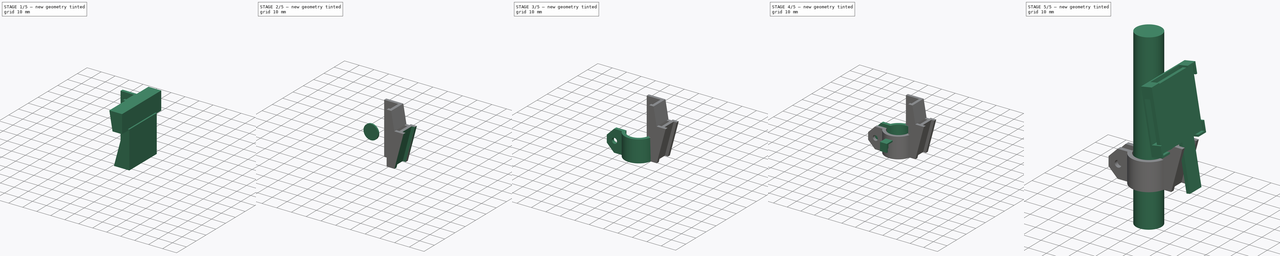
[diagram: build sequence overview — one tinted view per stage of 5, left to right]
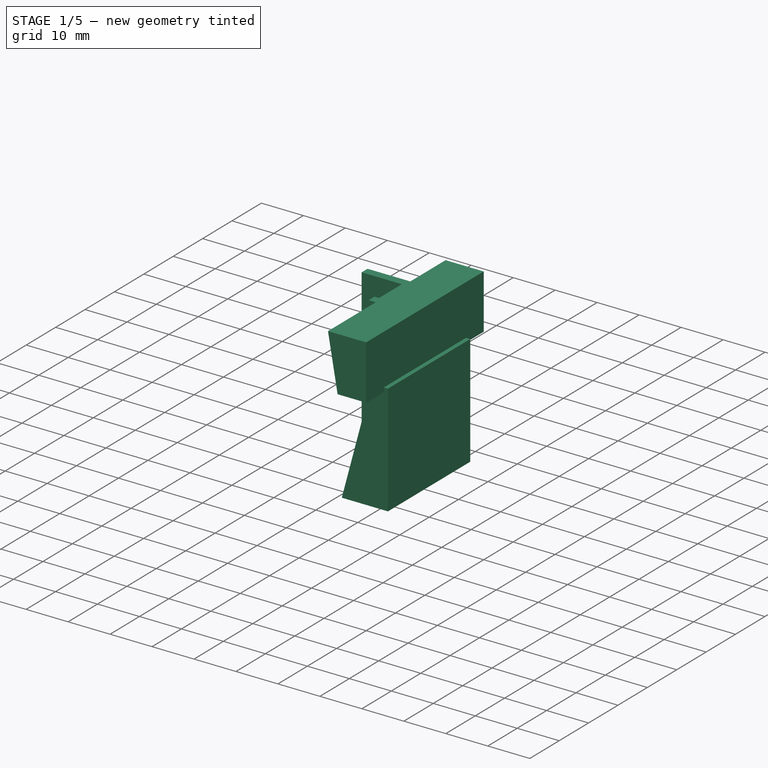
[diagram: stage 1 of 5 — iso view after this stage's code; geometry added in this stage tinted green]
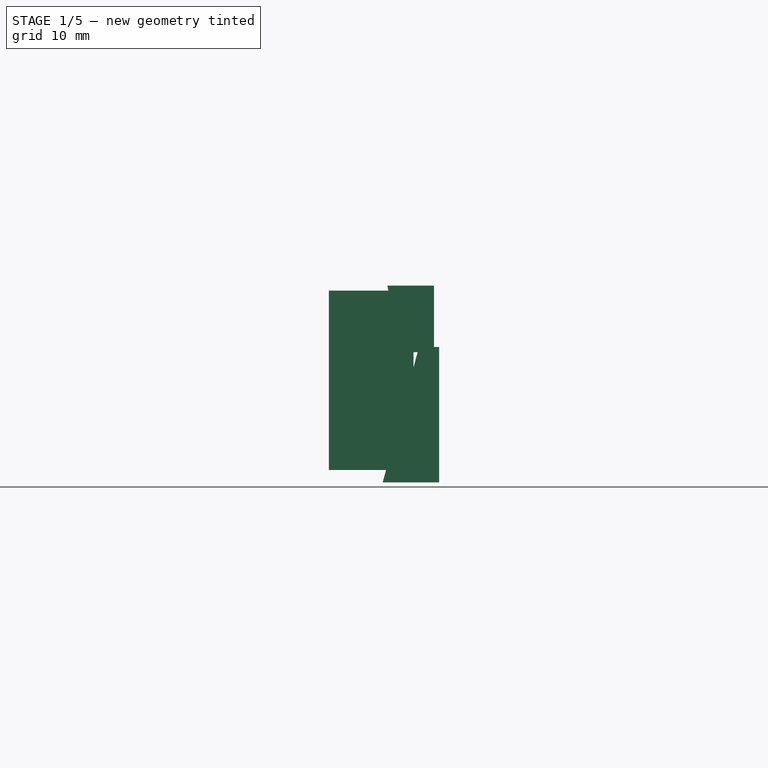
[diagram: stage 1 of 5 — front view after this stage's code; geometry added in this stage tinted green]
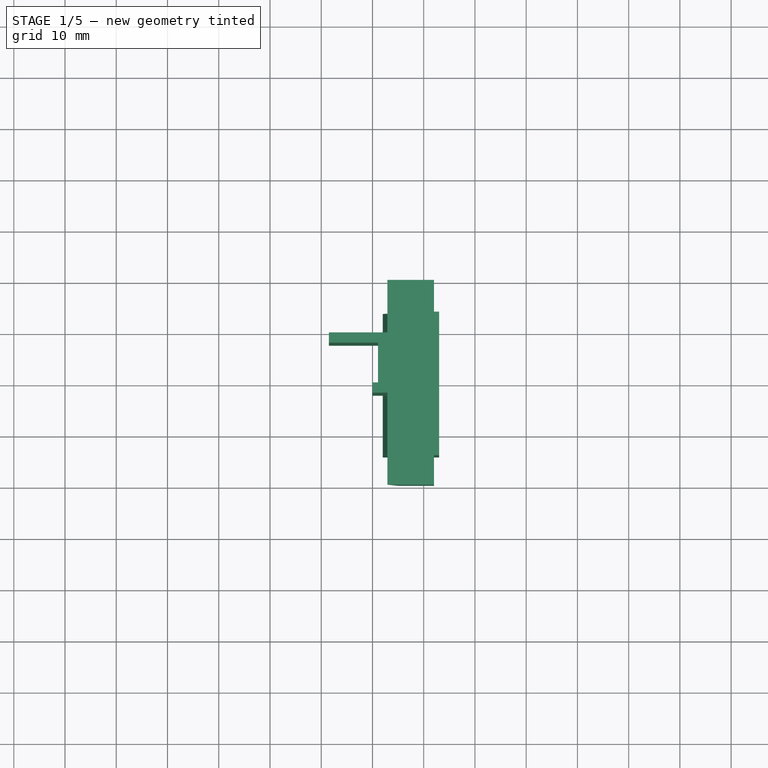
[diagram: stage 1 of 5 — top view after this stage's code; geometry added in this stage tinted green]
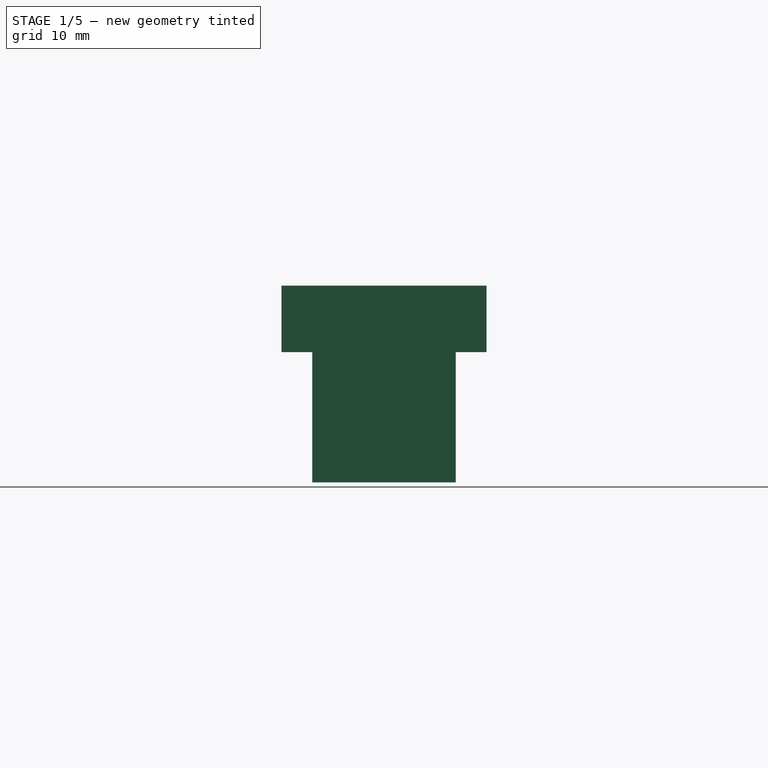
[diagram: stage 1 of 5 — right view after this stage's code; geometry added in this stage tinted green]
FCSTD DOCUMENT  (FreeCAD 0.19R24291 (Git))
Label: elp_fisheye
License: All rights reserved
LicenseURL: http://en.wikipedia.org/wiki/All_rights_reserved
objects: Sketcher::SketchObject×13, Part::Extrusion×12, Part::Compound×5, Part::Cylinder×2, Part::Cut×2, Part::MultiFuse×1, Part::MultiCommon×1, PartDesign::FeatureBase×1, PartDesign::Body×1, Part::Mirroring×1, Spreadsheet::Sheet×1, Part::FeaturePython×1
note: 39 computed .brp shape members not serialized (recipe doc carries the construction recipe); baked Part::Feature solids carry a one-line shape summary decoded from their .brp

FEATURE [Sketcher::SketchObject] Sketch022
  FullyConstrained = true
  Placement = pos=(0,0,35) rot=(0,0,1;0rad)
  sketch-geometry (8):
    g0: LineSegment StartX=1.5 StartY=9.75 StartZ=0 EndX=18 EndY=9.75 EndZ=0
    g1: LineSegment StartX=18 StartY=9.75 StartZ=0 EndX=18 EndY=7.75 EndZ=0
    g2: LineSegment StartX=18 StartY=7.75 StartZ=0 EndX=1.5 EndY=7.75 EndZ=0
    g3: LineSegment StartX=1.5 StartY=7.75 StartZ=0 EndX=1.5 EndY=9.75 EndZ=0
    g4: LineSegment StartX=18 StartY=-2 StartZ=0 EndX=10 EndY=-2 EndZ=0
    g5: LineSegment StartX=10 StartY=-2 StartZ=0 EndX=10 EndY=0 EndZ=0
    g6: LineSegment StartX=10 StartY=0 StartZ=0 EndX=18 EndY=0 EndZ=0
    g7: LineSegment StartX=18 StartY=0 StartZ=0 EndX=18 EndY=-2 EndZ=0
  constraints (24):
    c: Coincident(g0,g1)
    c: Coincident(g1,g2)
    c: Coincident(g2,g3)
    c: Coincident(g3,g0)
    c: Horizontal(g0)
    c: Horizontal(g2)
    c: Vertical(g1)
    c: Vertical(g3)
    c: DistanceY(g3,g3) = 2
    c: DistanceY(g0) = 9.75
    c: DistanceX(g0) = 1.5
    c: DistanceX(g0) = 18
    c: Coincident(g4,g5)
    c: Coincident(g5,g6)
    c: Coincident(g6,g7)
    c: Coincident(g7,g4)
    c: Horizontal(g4)
    c: Horizontal(g6)
    c: Vertical(g5)
    c: Vertical(g7)
    c: PointOnObject(g5,g-1)
    c: Vertical(g1,g6)
    c: DistanceY(g7,g7) = 2
    c: DistanceX(g5) = 10
FEATURE [Part::Extrusion] Extrude018
  Base = -> Sketch022
  Dir = (0,0,1)
  DirMode = 2
  FaceMakerClass = Part::FaceMakerBullseye
  LengthFwd = 20
  LengthRev = 15
  Solid = true
  Symmetric = false
FEATURE [Sketcher::SketchObject] Sketch023
  FullyConstrained = false
  Placement = pos=(0,0,0) rot=(-1,0,0;4.71239rad)
  sketch-geometry (4):
    g0: LineSegment StartX=19.0792 StartY=44 StartZ=0 EndX=12 EndY=17.5799 EndZ=0
    g1: LineSegment StartX=12 StartY=17.5799 StartZ=0 EndX=23 EndY=17.5799 EndZ=0
    g2: LineSegment StartX=23 StartY=17.5799 StartZ=0 EndX=23 EndY=44 EndZ=0
    g3: LineSegment StartX=23 StartY=44 StartZ=0 EndX=19.0792 EndY=44 EndZ=0
  constraints (9):
    c: Coincident(g0,g1)
    c: Horizontal(g1)
    c: Coincident(g1,g2)
    c: Vertical(g2)
    c: Coincident(g2,g3)
    c: Coincident(g3,g0)
    c: Horizontal(g3)
    c: Angle(g3,g0,g0) = 1.309
    c: DistanceX(g0) = 12
FEATURE [Part::Extrusion] Extrude019
  Base = -> Sketch023
  Dir = (0,-1,3e-16)
  DirMode = 2
  FaceMakerClass = Part::FaceMakerBullseye
  LengthFwd = 14
  LengthRev = 14
  Solid = true
  Symmetric = false
FEATURE [Sketcher::SketchObject] Sketch025
  FullyConstrained = false
  Placement = pos=(0,0,0) rot=(-1,0,0;4.71239rad)
  sketch-geometry (4):
    g0: LineSegment StartX=12.9114 StartY=55.9892 StartZ=0 EndX=15.2 EndY=43.01 EndZ=0
    g1: LineSegment StartX=15.2 StartY=43.01 StartZ=0 EndX=22 EndY=43.01 EndZ=0
    g2: LineSegment StartX=22 StartY=43.01 StartZ=0 EndX=22 EndY=55.9892 EndZ=0
    g3: LineSegment StartX=22 StartY=55.9892 StartZ=0 EndX=12.9114 EndY=55.9892 EndZ=0
  constraints (10):
    c: Coincident(g0,g1)
    c: Horizontal(g1)
    c: Coincident(g1,g2)
    c: Vertical(g2)
    c: Coincident(g2,g3)
    c: Coincident(g3,g0)
    c: Horizontal(g3)
    c: Angle(g0,g1,g0) = 1.39626
    c: DistanceX(g0) = 15.2
    c: DistanceY(g0) = 43.01
FEATURE [Part::Extrusion] Extrude021
  Base = -> Sketch025
  Dir = (0,-1,3e-16)
  DirMode = 2
  FaceMakerClass = Part::FaceMakerBullseye
  LengthFwd = 20
  LengthRev = 20
  Solid = true
  Symmetric = false
FEATURE [Part::Compound] Compound005
  Links = -> [Extrude019,Extrude021]
FEATURE [Sketcher::SketchObject] Sketch026
  FullyConstrained = true
  Placement = pos=(0,0,0) rot=(-1,0,0;4.71239rad)
  sketch-geometry (4):
    g0: LineSegment StartX=15.2 StartY=43 StartZ=0 EndX=13.0841 EndY=55 EndZ=0
    g1: LineSegment StartX=13.0841 StartY=55 StartZ=0 EndX=11.0841 EndY=55 EndZ=0
    g2: LineSegment StartX=11.0841 StartY=55 StartZ=0 EndX=13.2 EndY=43 EndZ=0
    g3: LineSegment StartX=13.2 StartY=43 StartZ=0 EndX=15.2 EndY=43 EndZ=0
  constraints (12):
    c: Coincident(g0,g1)
    c: Horizontal(g1)
    c: Coincident(g1,g2)
    c: Coincident(g2,g3)
    c: Horizontal(g3)
    c: Coincident(g0,g3)
    c: Parallel(g0,g2)
    c: DistanceX(g0) = 15.2
    c: DistanceY(g0) = 43
    c: DistanceX(g3,g3) = 2
    c: DistanceY(g0) = 55
    c: Angle(g3,g0,g0) = 1.74533
FEATURE [Part::Extrusion] Extrude022
  Base = -> Sketch026
  Dir = (0,-1,3e-16)
  DirMode = 2
  FaceMakerClass = Part::FaceMakerBullseye
  LengthFwd = 0
  LengthRev = 8
  Solid = true
  Symmetric = false
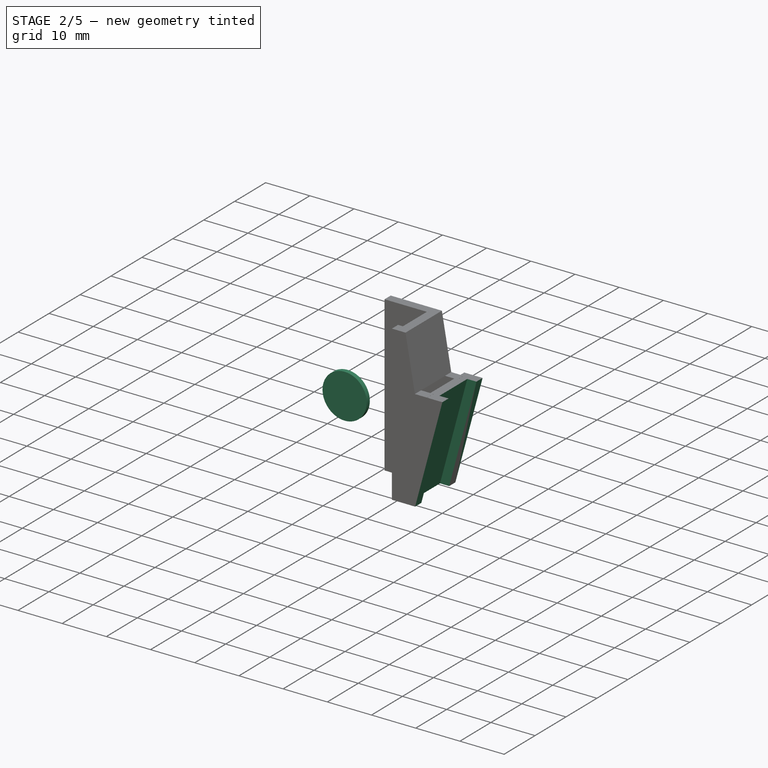
[diagram: stage 2 of 5 — iso view after this stage's code; geometry added in this stage tinted green]
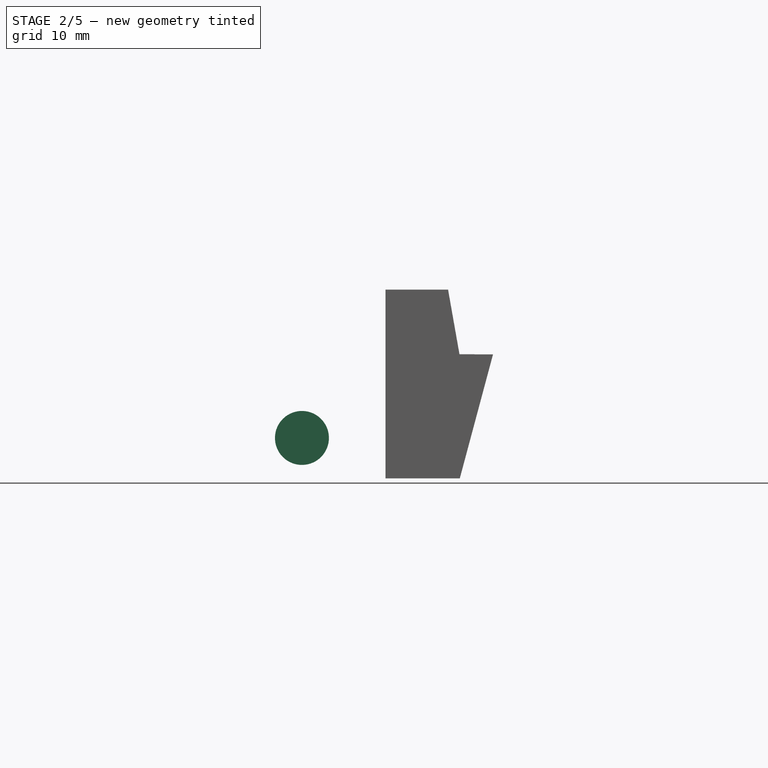
[diagram: stage 2 of 5 — front view after this stage's code; geometry added in this stage tinted green]
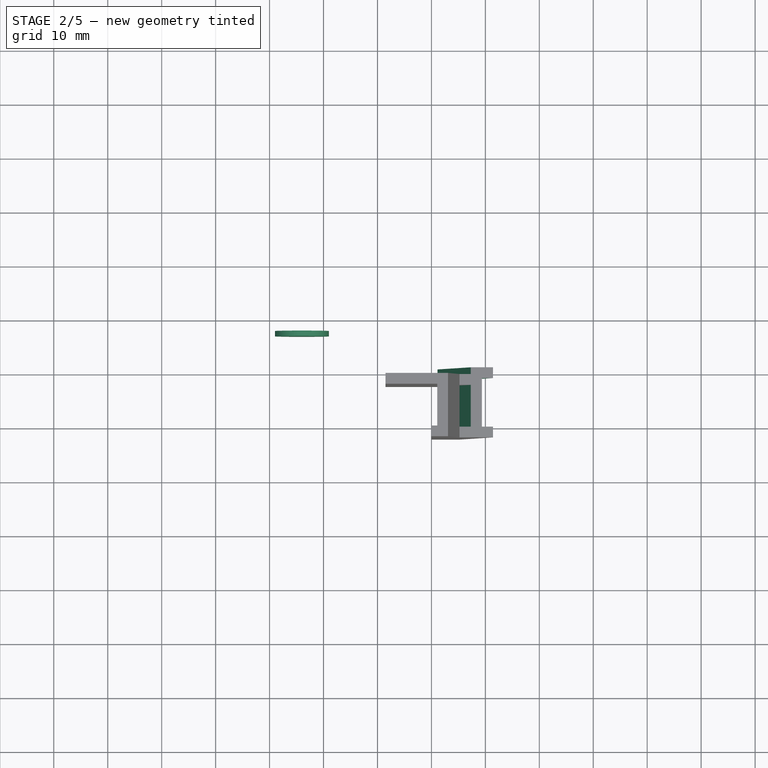
[diagram: stage 2 of 5 — top view after this stage's code; geometry added in this stage tinted green]
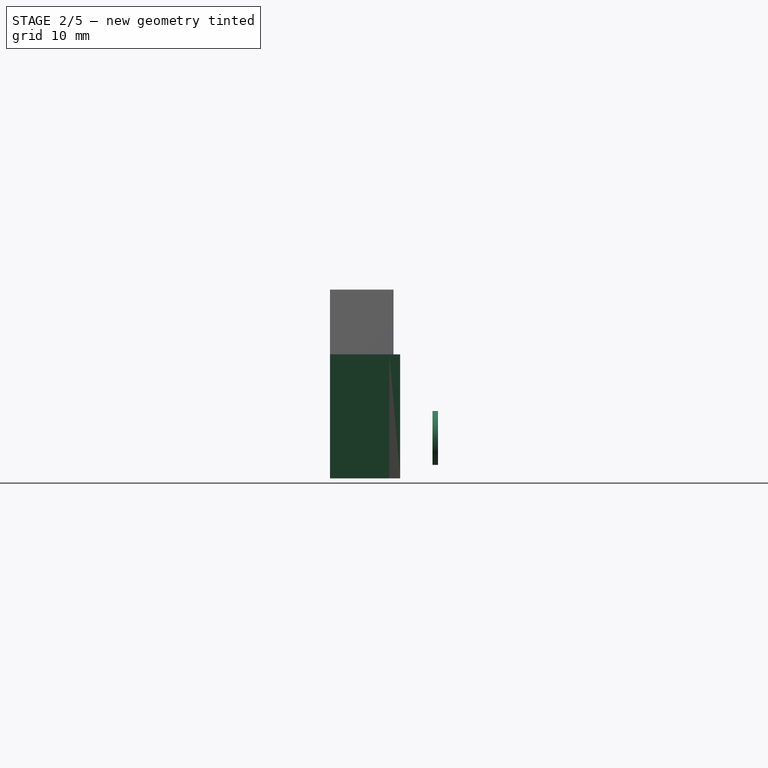
[diagram: stage 2 of 5 — right view after this stage's code; geometry added in this stage tinted green]
FEATURE [Part::Cylinder] Cylinder007  label="unprintable"
  Angle = 360
  AttacherType = Attacher::AttachEngine3D
  Height = 1
  Placement = pos=(-14,18,27.5) rot=(1,0,0;1.5708rad)
  Radius = 5
FEATURE [Sketcher::SketchObject] Sketch018
  FullyConstrained = true
  Placement = pos=(0,0,45) rot=(0,0,1;0rad)
  sketch-geometry (8):
    g0: LineSegment StartX=20 StartY=9 StartZ=0 EndX=22 EndY=9 EndZ=0
    g1: LineSegment StartX=22 StartY=9 StartZ=0 EndX=22 EndY=11 EndZ=0
    g2: LineSegment StartX=22 StartY=11 StartZ=0 EndX=18 EndY=11 EndZ=0
    g3: LineSegment StartX=18 StartY=11 StartZ=0 EndX=18 EndY=-2 EndZ=0
    g4: LineSegment StartX=18 StartY=-2 StartZ=0 EndX=22 EndY=-2 EndZ=0
    g5: LineSegment StartX=22 StartY=-2 StartZ=0 EndX=22 EndY=0 EndZ=0
    g6: LineSegment StartX=22 StartY=0 StartZ=0 EndX=20 EndY=0 EndZ=0
    g7: LineSegment StartX=20 StartY=0 StartZ=0 EndX=20 EndY=9 EndZ=0
  constraints (24):
    c: Horizontal(g0)
    c: Coincident(g0,g1)
    c: Vertical(g1)
    c: Coincident(g1,g2)
    c: Horizontal(g2)
    c: Coincident(g2,g3)
    c: Vertical(g3)
    c: Coincident(g3,g4)
    c: Horizontal(g4)
    c: Coincident(g4,g5)
    c: PointOnObject(g5,g-1)
    c: Vertical(g5)
    c: Coincident(g5,g6)
    c: Horizontal(g6)
    c: Coincident(g6,g7)
    c: Coincident(g7,g0)
    c: Vertical(g7)
    c: DistanceX(g2,g2) = 4
    c: DistanceX(g0,g0) = 2
    c: Vertical(g5,g0)
    c: DistanceX(g2) = 18
    c: DistanceY(g2) = 11
    c: DistanceY(g3,g3) = 13
    c: DistanceY(g1,g1) = 2
FEATURE [Part::Extrusion] Extrude014
  Base = -> Sketch018
  Dir = (0,0,1)
  DirMode = 2
  FaceMakerClass = Part::FaceMakerBullseye
  LengthFwd = 0
  LengthRev = 27
  Placement = pos=(-11,0,7) rot=(0,1,0;0.261799rad)
  Solid = true
  Symmetric = false
FEATURE [Sketcher::SketchObject] Sketch024
  FullyConstrained = false
  Placement = pos=(0,0,0) rot=(-1,0,0;4.71239rad)
  sketch-geometry (8):
    g0: LineSegment StartX=10 StartY=20 StartZ=0 EndX=17 EndY=20 EndZ=0
    g1: LineSegment StartX=17 StartY=20 StartZ=0 EndX=17 EndY=18 EndZ=0
    g2: LineSegment StartX=17 StartY=18 StartZ=0 EndX=10 EndY=18 EndZ=0
    g3: LineSegment StartX=10 StartY=18 StartZ=0 EndX=10 EndY=20 EndZ=0
    g4: LineSegment StartX=24 StartY=43 StartZ=0 EndX=16 EndY=43 EndZ=0
    g5: LineSegment StartX=16 StartY=43 StartZ=0 EndX=16 EndY=47 EndZ=0
    g6: LineSegment StartX=16 StartY=47 StartZ=0 EndX=24 EndY=47 EndZ=0
    g7: LineSegment StartX=24 StartY=47 StartZ=0 EndX=24 EndY=43 EndZ=0
  constraints (16):
    c: Coincident(g0,g1)
    c: Coincident(g1,g2)
    c: Coincident(g2,g3)
    c: Coincident(g3,g0)
    c: Horizontal(g0)
    c: Horizontal(g2)
    c: Vertical(g1)
    c: Vertical(g3)
    c: Coincident(g4,g5)
    c: Coincident(g5,g6)
    c: Coincident(g6,g7)
    c: Coincident(g7,g4)
    c: Horizontal(g4)
    c: Horizontal(g6)
    c: Vertical(g5)
    c: Vertical(g7)
FEATURE [Part::Extrusion] Extrude020
  Base = -> Sketch024
  Dir = (0,-1,3e-16)
  DirMode = 2
  FaceMakerClass = Part::FaceMakerBullseye
  LengthFwd = 5
  LengthRev = 14
  Solid = true
  Symmetric = false
FEATURE [Part::Cut] Cut001
  Base = -> Extrude014
  Tool = -> Extrude020
FEATURE [Part::Cut] Cut002
  Base = -> Extrude018
  Tool = -> Compound005
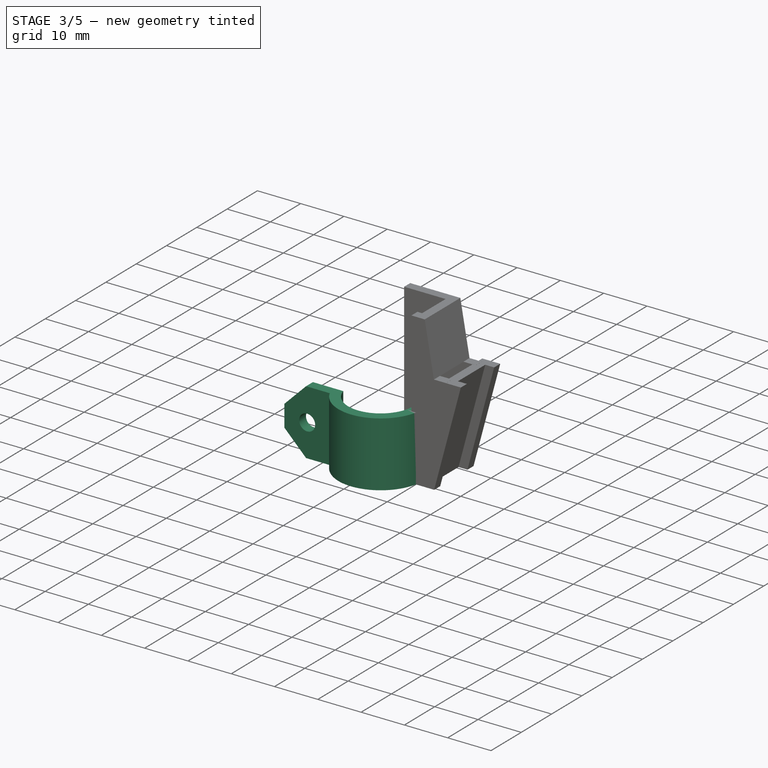
[diagram: stage 3 of 5 — iso view after this stage's code; geometry added in this stage tinted green]
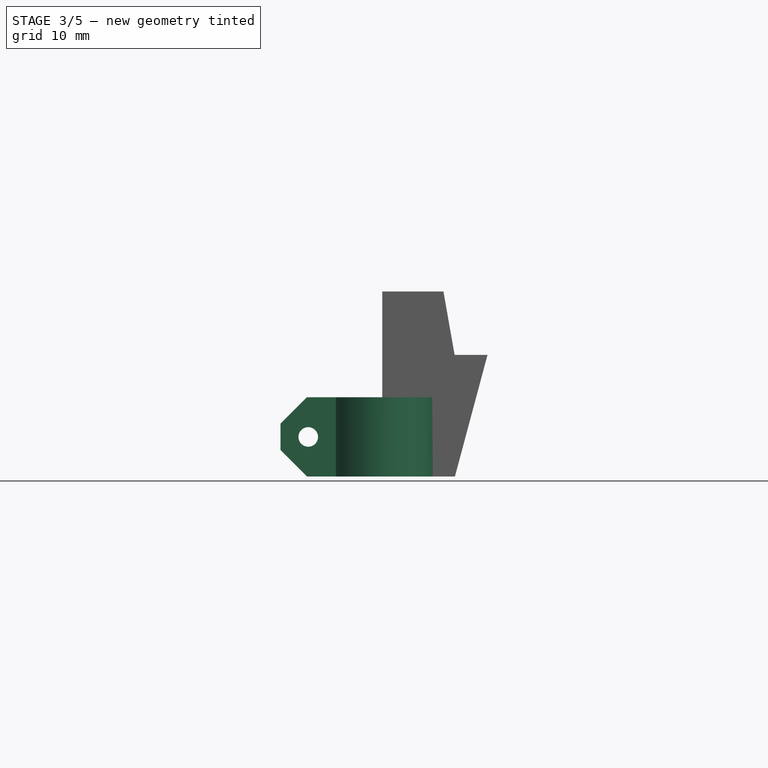
[diagram: stage 3 of 5 — front view after this stage's code; geometry added in this stage tinted green]
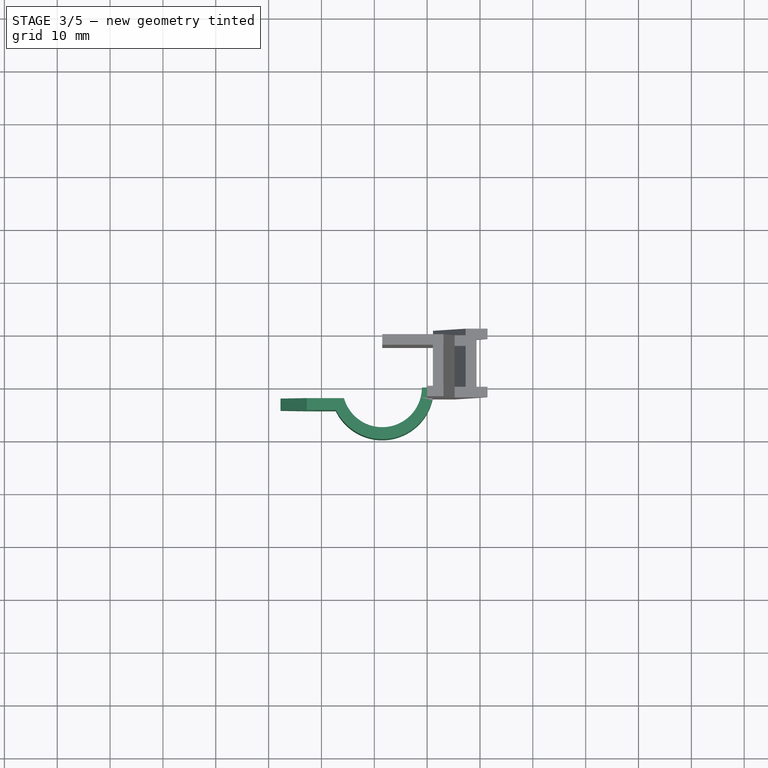
[diagram: stage 3 of 5 — top view after this stage's code; geometry added in this stage tinted green]
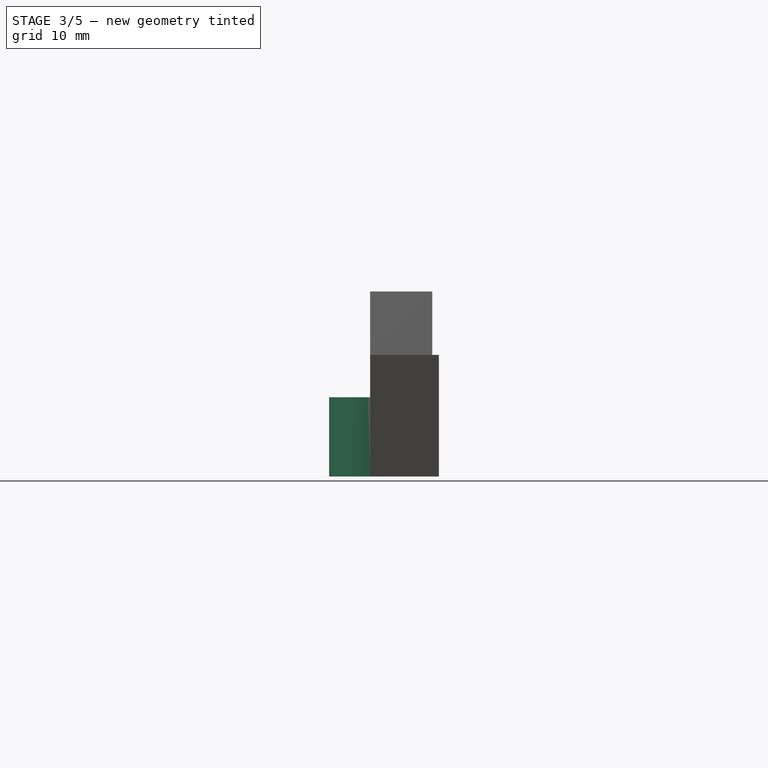
[diagram: stage 3 of 5 — right view after this stage's code; geometry added in this stage tinted green]
FEATURE [Sketcher::SketchObject] Sketch015
  FullyConstrained = true
  Placement = pos=(0,0,50) rot=(0,0,1;0rad)
  expr: Constraints[2] = Spreadsheet.cf_radius + 0.25
  expr: Constraints[3] = Spreadsheet.cf_radius + 2.5
  sketch-geometry (6):
    g0: ArcOfCircle CenterX=0 CenterY=0 CenterZ=0 NormalX=0 NormalY=0 NormalZ=1 AngleXU=0 Radius=7.5 StartAngle=0 EndAngle=2.87166
    g1: ArcOfCircle CenterX=0 CenterY=0 CenterZ=0 NormalX=0 NormalY=0 NormalZ=1 AngleXU=0 Radius=9.75 StartAngle=0 EndAngle=2.69056
    g2: LineSegment StartX=7.5 StartY=0 StartZ=0 EndX=9.75 EndY=0 EndZ=0
    g3: LineSegment StartX=-7.22842 StartY=2 StartZ=0 EndX=-21.2284 EndY=2 EndZ=0
    g4: LineSegment StartX=-8.77496 StartY=4.25 StartZ=0 EndX=-21.2284 EndY=4.25 EndZ=0
    g5: LineSegment StartX=-21.2284 StartY=4.25 StartZ=0 EndX=-21.2284 EndY=2 EndZ=0
  constraints (18):
    c: Coincident(g0,g-1)
    c: Coincident(g1,g0)
    c: Radius(g0) = 7.5
    c: Radius(g1) = 9.75
    c: DistanceY(g0,g0) = 2
    c: PointOnObject(g0,g-1)
    c: Coincident(g2,g0)
    c: Coincident(g2,g1)
    c: Horizontal(g2)
    c: Coincident(g0,g3)
    c: Horizontal(g3)
    c: DistanceX(g3,g3) = 14
    c: Coincident(g4,g1)
    c: Horizontal(g4)
    c: Coincident(g5,g4)
    c: Coincident(g5,g3)
    c: Vertical(g5)
    c: DistanceY(g3,g4) = 2.25
FEATURE [Sketcher::SketchObject] Sketch016
  FullyConstrained = true
  Placement = pos=(0,0,0) rot=(1,0,0;1.5708rad)
  expr: Constraints[10] = Spreadsheet.r_6_32
  sketch-geometry (7):
    g0: LineSegment StartX=11.75 StartY=36 StartZ=0 EndX=11.75 EndY=19 EndZ=0
    g1: LineSegment StartX=11.75 StartY=19 StartZ=0 EndX=-13.25 EndY=19 EndZ=0
    g2: LineSegment StartX=-13.25 StartY=19 StartZ=0 EndX=-19.25 EndY=25 EndZ=0
    g3: LineSegment StartX=-19.25 StartY=25 StartZ=0 EndX=-19.25 EndY=30 EndZ=0
    g4: LineSegment StartX=-19.25 StartY=30 StartZ=0 EndX=-13.25 EndY=36 EndZ=0
    g5: LineSegment StartX=-13.25 StartY=36 StartZ=0 EndX=11.75 EndY=36 EndZ=0
    g6: Circle CenterX=-14 CenterY=27.4816 CenterZ=0 NormalX=0 NormalY=0 NormalZ=1 AngleXU=0 Radius=1.85
  constraints (21):
    c: Vertical(g0)
    c: Coincident(g0,g1)
    c: Horizontal(g1)
    c: Coincident(g1,g2)
    c: Coincident(g2,g3)
    c: Vertical(g3)
    c: Coincident(g3,g4)
    c: Coincident(g4,g5)
    c: Coincident(g5,g0)
    c: Horizontal(g5)
    c: Radius(g6) = 1.85
    c: DistanceX(g6) = -14
    c: DistanceY(g6) = 27.4816
    c: DistanceX(g1,g2) = -6
    c: DistanceY(g1,g2) = 6
    c: DistanceX(g4,g3) = -6
    c: DistanceY(g4,g3) = -6
    c: DistanceX(g0,g1) = -25
    c: DistanceY(g0,g1) = -17
    c: DistanceX(g0) = 11.75
    c: DistanceY(g0) = 36
FEATURE [Part::Extrusion] Extrude013
  Base = -> Sketch016
  Dir = (0,-1,2e-16)
  DirMode = 2
  FaceMakerClass = Part::FaceMakerBullseye
  LengthFwd = 0
  LengthRev = 12
  Solid = true
  Symmetric = false
FEATURE [Part::Extrusion] Extrude012
  Base = -> Sketch015
  Dir = (0,0,1)
  DirMode = 2
  FaceMakerClass = Part::FaceMakerBullseye
  LengthFwd = 15
  LengthRev = 0
  Placement = pos=(0,0,-30) rot=(0,0,1;0rad)
  Solid = true
  Symmetric = false
FEATURE [Part::MultiFuse] Fusion016
  Shapes = -> [Extrude012,Cylinder007]
FEATURE [Part::MultiCommon] Common001
  Placement = pos=(1.5,0,0) rot=(0,0,1;0rad)
  Shapes = -> [Fusion016,Extrude013]
FEATURE [PartDesign::FeatureBase] Clone007
  BaseFeature = -> Common001
FEATURE [PartDesign::Body] Body007
  BaseFeature = -> Common001
  Group = -> [Clone007]
  Origin = -> Origin007
  Tip = -> Clone007
FEATURE [Part::Mirroring] Part__Mirroring008  label="Body007 (Mirror #8)"
  Base = (0,0,0)
  Normal = (0,1,0)
  Placement = pos=(1.5,0,0) rot=(0,0,1;0rad)
  Source = -> Body007
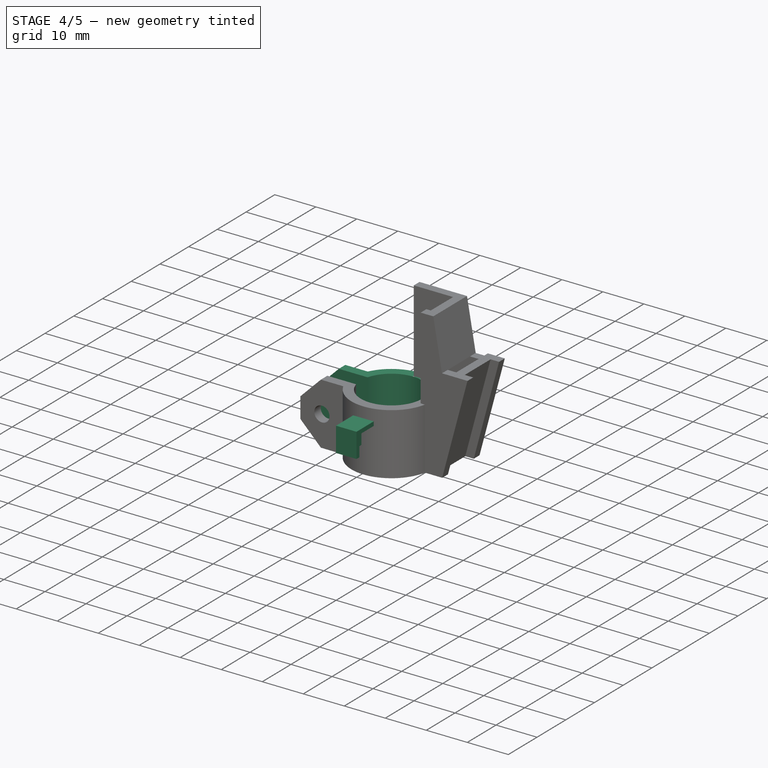
[diagram: stage 4 of 5 — iso view after this stage's code; geometry added in this stage tinted green]
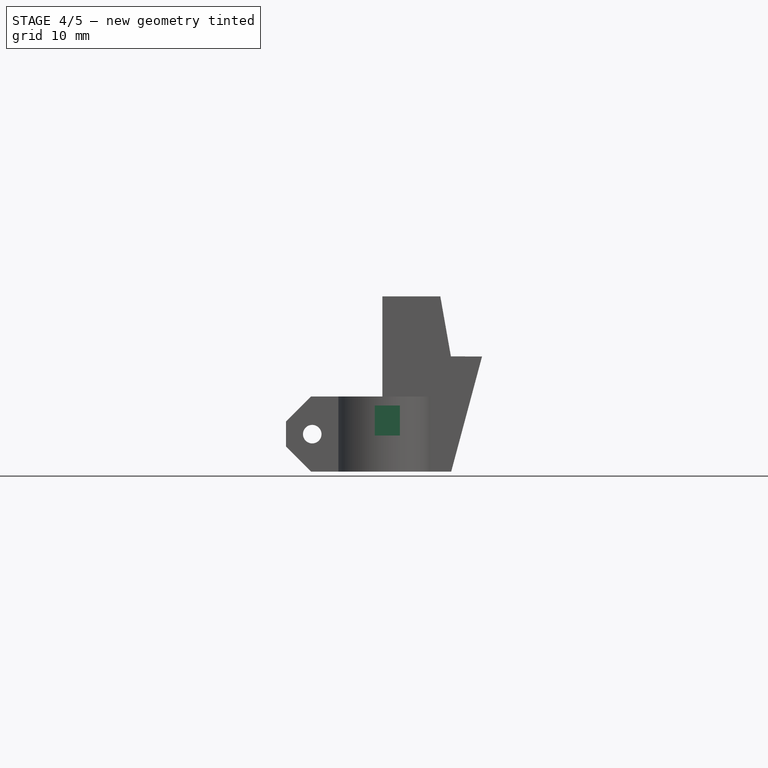
[diagram: stage 4 of 5 — front view after this stage's code; geometry added in this stage tinted green]
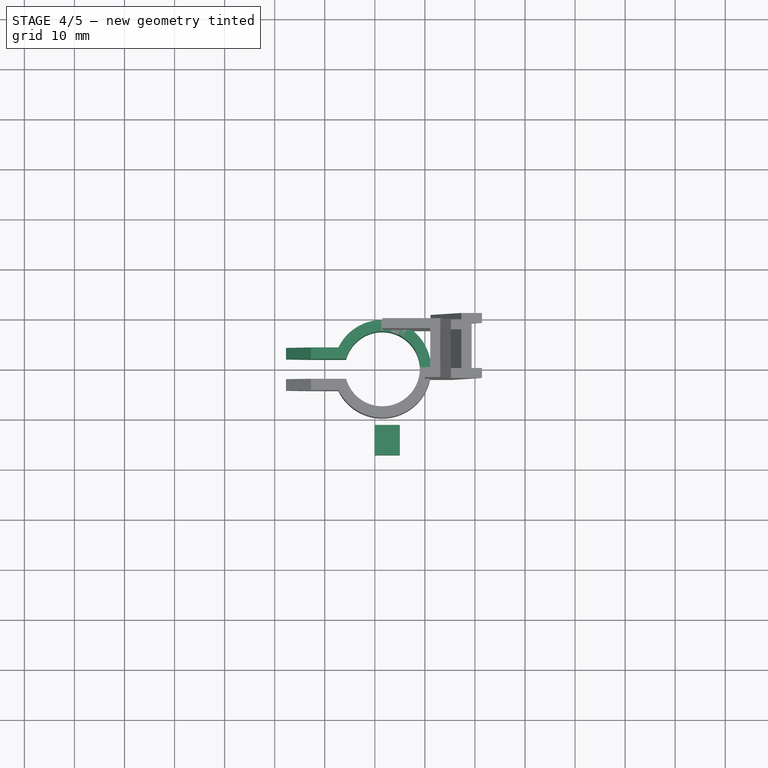
[diagram: stage 4 of 5 — top view after this stage's code; geometry added in this stage tinted green]
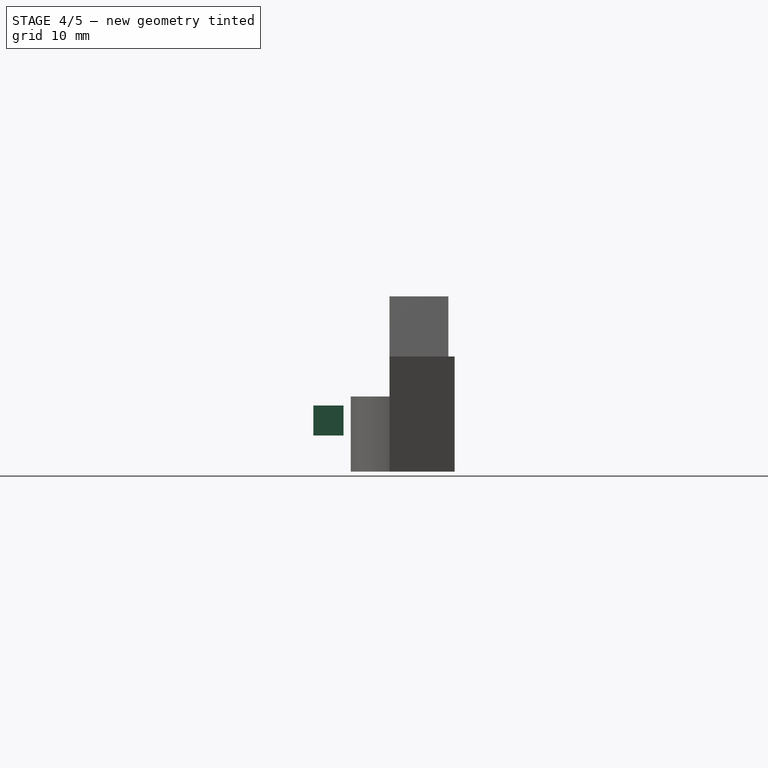
[diagram: stage 4 of 5 — right view after this stage's code; geometry added in this stage tinted green]
FEATURE [Part::Compound] Compound003  label="collar"
  Links = -> [Common001,Part__Mirroring008]
FEATURE [Sketcher::SketchObject] Sketch020
  FullyConstrained = true
  Placement = pos=(0,0,0) rot=(0.57735,0.57735,0.57735;2.0944rad)
  sketch-geometry (6):
    g0: LineSegment StartX=-16.2 StartY=32.2 StartZ=0 EndX=-11.2 EndY=32.2 EndZ=0
    g1: LineSegment StartX=-11.2 StartY=32.2 StartZ=0 EndX=-11.2 EndY=33.2 EndZ=0
    g2: LineSegment StartX=-11.2 StartY=33.2 StartZ=0 EndX=-17.2 EndY=33.2 EndZ=0
    g3: LineSegment StartX=-17.2 StartY=33.2 StartZ=0 EndX=-17.2 EndY=27.2 EndZ=0
    g4: LineSegment StartX=-17.2 StartY=27.2 StartZ=0 EndX=-16.2 EndY=27.2 EndZ=0
    g5: LineSegment StartX=-16.2 StartY=27.2 StartZ=0 EndX=-16.2 EndY=32.2 EndZ=0
  constraints (18):
    c: Horizontal(g0)
    c: Coincident(g0,g1)
    c: Vertical(g1)
    c: Coincident(g1,g2)
    c: Horizontal(g2)
    c: Coincident(g2,g3)
    c: Vertical(g3)
    c: Coincident(g3,g4)
    c: Horizontal(g4)
    c: Coincident(g4,g5)
    c: Coincident(g5,g0)
    c: Vertical(g5)
    c: DistanceX(g0,g0) = 5
    c: DistanceY(g5,g5) = 5
    c: DistanceX(g0) = -16.2
    c: DistanceY(g0) = 32.2
    c: DistanceY(g1,g1) = 1
    c: DistanceX(g4,g4) = 1
FEATURE [Part::Extrusion] Extrude016
  Base = -> Sketch020
  Dir = (1,0,0)
  DirMode = 2
  FaceMakerClass = Part::FaceMakerBullseye
  LengthFwd = 5
  LengthRev = 0
  Solid = true
  Symmetric = false
FEATURE [Sketcher::SketchObject] Sketch021
  FullyConstrained = true
  Placement = pos=(0,0,0) rot=(0.57735,0.57735,0.57735;2.0944rad)
  sketch-geometry (4):
    g0: LineSegment StartX=-16.2 StartY=32.2 StartZ=0 EndX=-11.2 EndY=32.2 EndZ=0
    g1: LineSegment StartX=-11.2 StartY=32.2 StartZ=0 EndX=-11.2 EndY=27.2 EndZ=0
    g2: LineSegment StartX=-11.2 StartY=27.2 StartZ=0 EndX=-16.2 EndY=27.2 EndZ=0
    g3: LineSegment StartX=-16.2 StartY=27.2 StartZ=0 EndX=-16.2 EndY=32.2 EndZ=0
  constraints (12):
    c: Coincident(g0,g1)
    c: Coincident(g1,g2)
    c: Coincident(g2,g3)
    c: Coincident(g3,g0)
    c: Horizontal(g0)
    c: Horizontal(g2)
    c: Vertical(g1)
    c: Vertical(g3)
    c: DistanceX(g0) = -16.2
    c: DistanceY(g0) = 32.2
    c: DistanceX(g0,g0) = 5
    c: DistanceY(g3,g3) = 5
FEATURE [Part::Extrusion] Extrude017
  Base = -> Sketch021
  Dir = (1,0,0)
  DirMode = 2
  FaceMakerClass = Part::FaceMakerBullseye
  LengthFwd = 2
  LengthRev = 0
  Solid = true
  Symmetric = false
FEATURE [Part::Compound] Compound
  Links = -> [Extrude017,Extrude016]
FEATURE [Part::Compound] Compound006  label="bottom"
  Links = -> [Extrude022,Cut002,Cut001,Compound003]
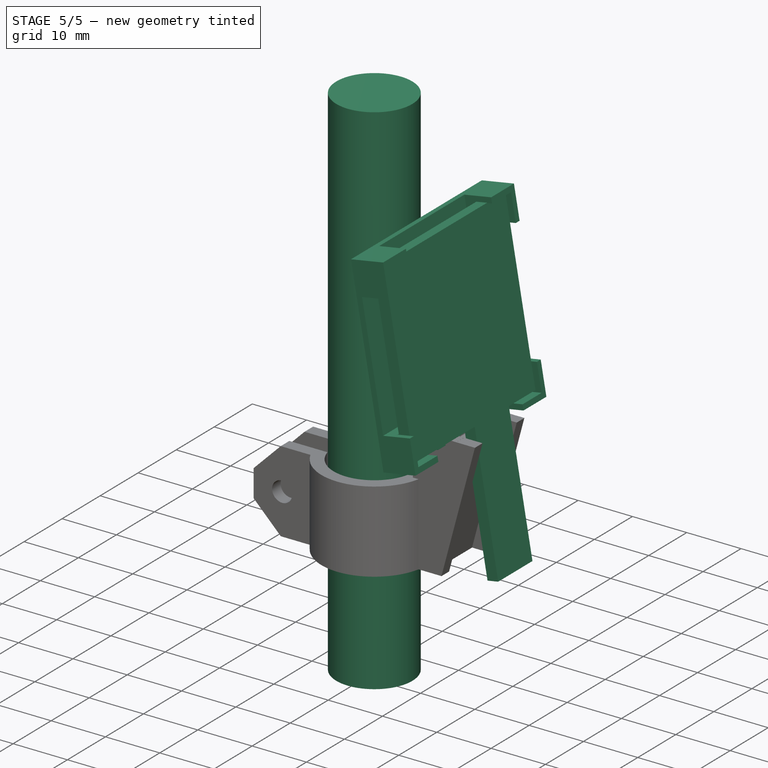
[diagram: stage 5 of 5 — iso view after this stage's code; geometry added in this stage tinted green]
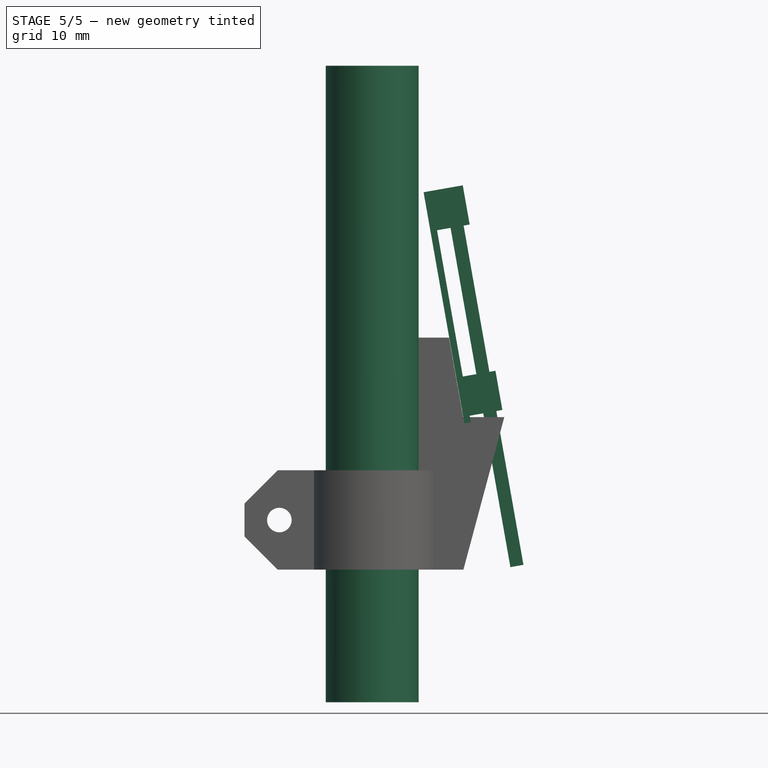
[diagram: stage 5 of 5 — front view after this stage's code; geometry added in this stage tinted green]
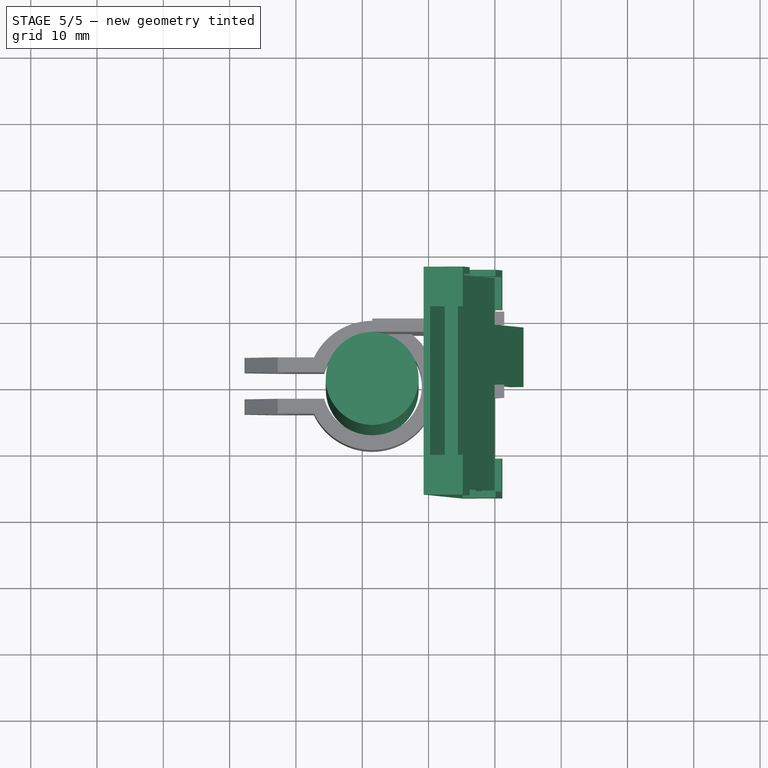
[diagram: stage 5 of 5 — top view after this stage's code; geometry added in this stage tinted green]
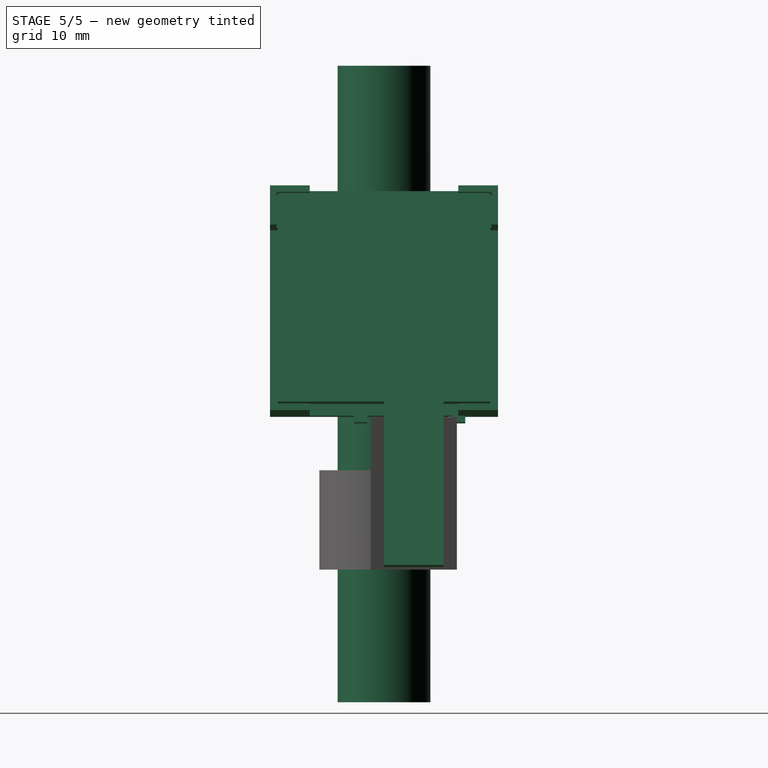
[diagram: stage 5 of 5 — right view after this stage's code; geometry added in this stage tinted green]
FEATURE [Spreadsheet::Sheet] Spreadsheet
  cells = A1=lunchbox screw r1; B1(lunchbox_screw_r1)=1.4; A2=4_40_r; B2(r_4_40)=1.7; A3=cf radius; B3(cf_radius)=7.25; A4=servo r; B4(servo_r)=16; A5=r_6_32; B5(r_6_32)=1.85; A7=screw_r1; B7(screw_r1)=2.6; C7=m2.6 screw sizes; A8=screw_r2; B8(screw_r2)=1.6; A9=screw_r3; B9(screw_r3)=1.3
FEATURE [Sketcher::SketchObject] Sketch
  FullyConstrained = true
  Placement = pos=(0,0,0) rot=(0.57735,0.57735,0.57735;2.0944rad)
  sketch-geometry (8):
    g0: LineSegment StartX=-16 StartY=32 StartZ=0 EndX=16 EndY=32 EndZ=0
    g1: LineSegment StartX=16 StartY=32 StartZ=0 EndX=16 EndY=0 EndZ=0
    g2: LineSegment StartX=0 StartY=0 StartZ=0 EndX=-16 EndY=0 EndZ=0
    g3: LineSegment StartX=-16 StartY=0 StartZ=0 EndX=-16 EndY=32 EndZ=0
    g4: LineSegment StartX=16 StartY=0 StartZ=0 EndX=9 EndY=0 EndZ=0
    g5: LineSegment StartX=9 StartY=0 StartZ=0 EndX=9 EndY=-25 EndZ=0
    g6: LineSegment StartX=9 StartY=-25 StartZ=0 EndX=0 EndY=-25 EndZ=0
    g7: LineSegment StartX=0 StartY=-25 StartZ=0 EndX=0 EndY=0 EndZ=0
  constraints (24):
    c: Coincident(g0,g1)
    c: Coincident(g2,g3)
    c: Coincident(g3,g0)
    c: Horizontal(g0)
    c: Horizontal(g2)
    c: Vertical(g1)
    c: Vertical(g3)
    c: DistanceX(g0,g0) = 32
    c: DistanceY(g3,g3) = 32
    c: DistanceX(g0) = 16
    c: DistanceY(g0) = 32
    c: Coincident(g1,g4)
    c: PointOnObject(g4,g-1)
    c: Horizontal(g4)
    c: Coincident(g4,g5)
    c: Vertical(g5)
    c: Coincident(g5,g6)
    c: PointOnObject(g6,g-2)
    c: Horizontal(g6)
    c: Coincident(g6,g7)
    c: Coincident(g7,g2)
    c: Vertical(g7)
    c: DistanceX(g4,g4) = 7
    c: DistanceY(g5,g5) = 25
FEATURE [Part::Extrusion] Extrude  label="cam"
  Base = -> Sketch
  Dir = (1,0,0)
  DirMode = 2
  FaceMakerClass = Part::FaceMakerBullseye
  LengthFwd = 2
  LengthRev = 0
  Placement = pos=(18,0,45) rot=(0,1,0;6.10865rad)
  Solid = true
  Symmetric = false
FEATURE [Sketcher::SketchObject] Sketch017
  FullyConstrained = true
  Placement = pos=(0,0,0) rot=(-1,0,0;4.71239rad)
FEATURE [Part::Cylinder] Cylinder  label="cf"
  Angle = 360
  AttacherType = Attacher::AttachEngine3D
  Height = 96
  Placement = pos=(1.5,0,0) rot=(0,0,1;0rad)
  Radius = 7
FEATURE [Sketcher::SketchObject] Sketch019
  FullyConstrained = true
  Placement = pos=(0,0,0) rot=(0.57735,0.57735,0.57735;2.0944rad)
  sketch-geometry (12):
    g0: LineSegment StartX=-17.2 StartY=33.2 StartZ=0 EndX=17.2 EndY=33.2 EndZ=0
    g1: LineSegment StartX=17.2 StartY=33.2 StartZ=0 EndX=17.2 EndY=-1.2 EndZ=0
    g2: LineSegment StartX=-4.5 StartY=-1.2 StartZ=0 EndX=-17.2 EndY=-1.2 EndZ=0
    g3: LineSegment StartX=-17.2 StartY=-1.2 StartZ=0 EndX=-17.2 EndY=33.2 EndZ=0
    g4: LineSegment StartX=17.2 StartY=-1.2 StartZ=0 EndX=12.25 EndY=-1.2 EndZ=0
    g5: LineSegment StartX=12.25 StartY=-1.2 StartZ=0 EndX=12.25 EndY=-2.2 EndZ=0
    g6: LineSegment StartX=12.25 StartY=-2.2 StartZ=0 EndX=10.25 EndY=-2.2 EndZ=0
    g7: LineSegment StartX=10.25 StartY=-2.2 StartZ=0 EndX=10.25 EndY=-1.2 EndZ=0
    g8: LineSegment StartX=10.25 StartY=-1.2 StartZ=0 EndX=-2.5 EndY=-1.2 EndZ=0
    g9: LineSegment StartX=-2.5 StartY=-1.2 StartZ=0 EndX=-2.5 EndY=-2.2 EndZ=0
    g10: LineSegment StartX=-2.5 StartY=-2.2 StartZ=0 EndX=-4.5 EndY=-2.2 EndZ=0
    g11: LineSegment StartX=-4.5 StartY=-2.2 StartZ=0 EndX=-4.5 EndY=-1.2 EndZ=0
  constraints (36):
    c: Coincident(g0,g1)
    c: Coincident(g2,g3)
    c: Coincident(g3,g0)
    c: Horizontal(g0)
    c: Horizontal(g2)
    c: Vertical(g1)
    c: Vertical(g3)
    c: DistanceX(g0) = 17.2
    c: DistanceY(g0) = 33.2
    c: DistanceX(g2) = -17.2
    c: DistanceY(g2) = -1.2
    c: Coincident(g1,g4)
    c: Horizontal(g4)
    c: Coincident(g4,g5)
    c: Vertical(g5)
    c: Coincident(g5,g6)
    c: Horizontal(g6)
    c: Coincident(g6,g7)
    c: Vertical(g7)
    c: Coincident(g7,g8)
    c: Horizontal(g8)
    c: Coincident(g8,g9)
    c: Vertical(g9)
    c: Coincident(g9,g10)
    c: Horizontal(g10)
    c: Coincident(g10,g11)
    c: Coincident(g11,g2)
    c: Vertical(g11)
    c: Horizontal(g7,g4)
    c: Horizontal(g2,g8)
    c: DistanceX(g10,g10) = 2
    c: DistanceX(g6,g6) = 2
    c: DistanceX(g7) = 10.25
    c: DistanceX(g8) = -2.5
    c: DistanceY(g7,g7) = 1
    c: Horizontal(g9,g6)
FEATURE [Part::Extrusion] Extrude015
  Base = -> Sketch019
  Dir = (1,0,0)
  DirMode = 2
  FaceMakerClass = Part::FaceMakerBullseye
  LengthFwd = 0
  LengthRev = 1
  Solid = true
  Symmetric = false
FEATURE [Part::FeaturePython] Array  # Draft array (typed FeaturePython)
  Angle = 360
  ArrayType = 1
  Axis = (1,0,0)
  Base = -> Compound
  Center = (0,0,16)
  Count = 4
  ExpandArray = false
  Fuse = false
  IntervalAxis = (0,0,0)
  IntervalX = (100,0,0)
  IntervalY = (0,100,0)
  IntervalZ = (0,0,100)
  NumberCircles = 3
  NumberPolar = 4
  NumberX = 2
  NumberY = 2
  NumberZ = 1
  PlacementList = 4 placements: [(0,0,0),(0,16,16),(0,1.95943e-15,32),(0,-16,16)]
  RadialDistance = 50
  ScaleList = (4) [(1,1,1),(1,1,1),(1,1,1),(1,1,1)]
  Symmetry = 1
  TangentialDistance = 25
FEATURE [Part::Compound] Compound004  label="top"
  Links = -> [Extrude015,Array]
  Placement = pos=(16,0,44.4) rot=(0,1,0;6.10865rad)
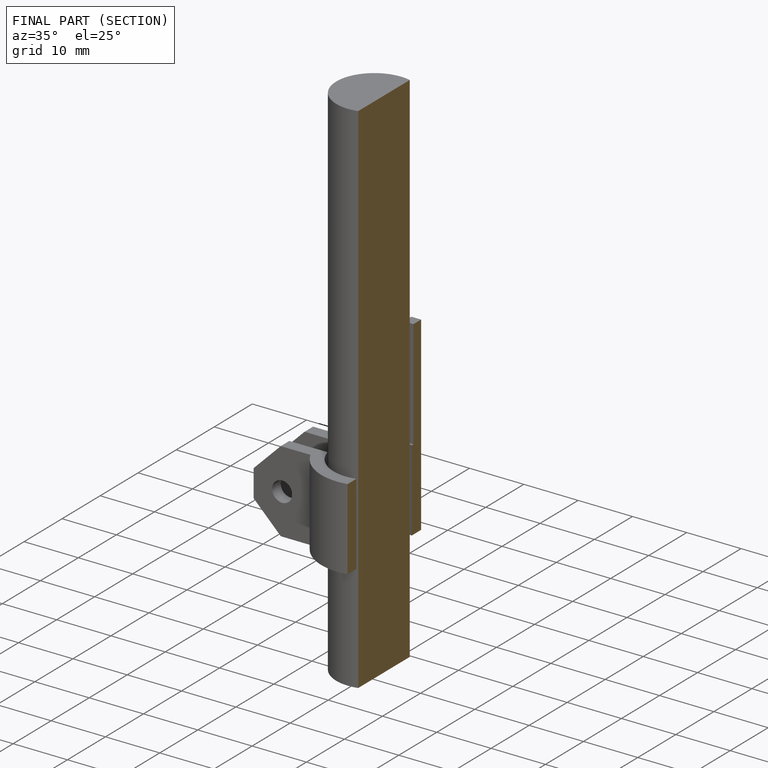
[diagram: finished part — half-section view (interior)]
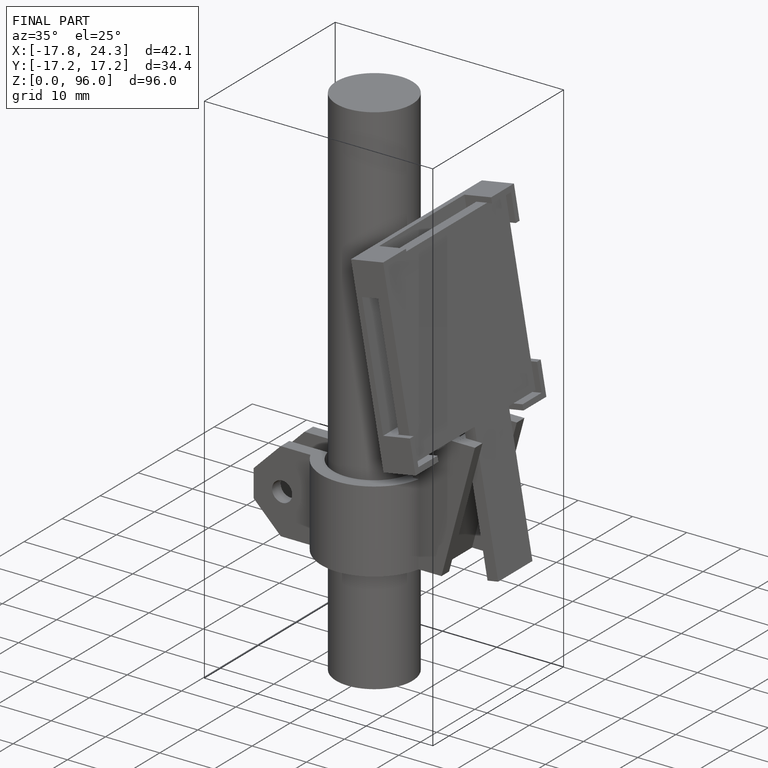
[diagram: finished part — iso view with bounding-box wireframe]
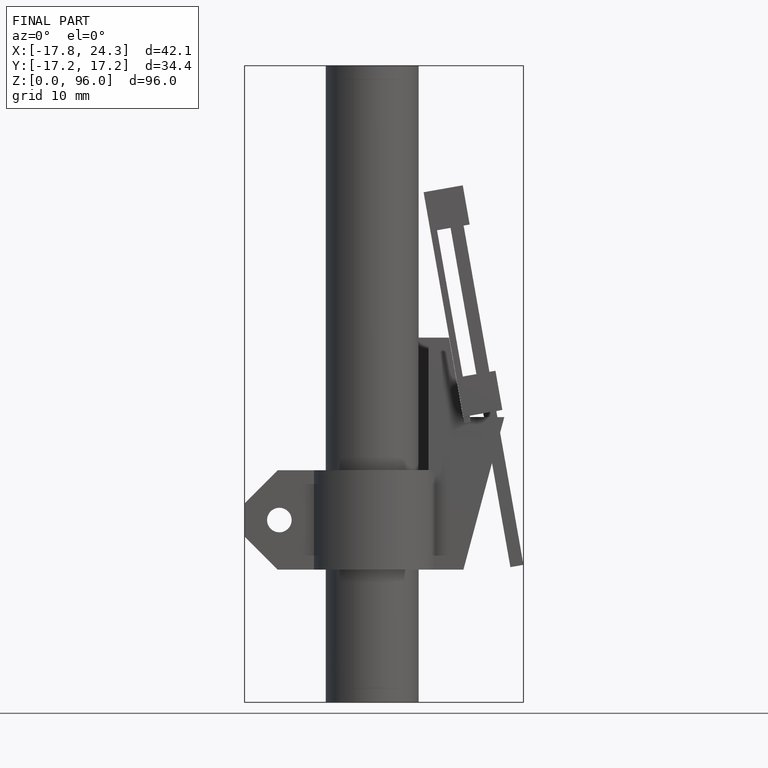
[diagram: finished part — front view with bounding-box wireframe]
